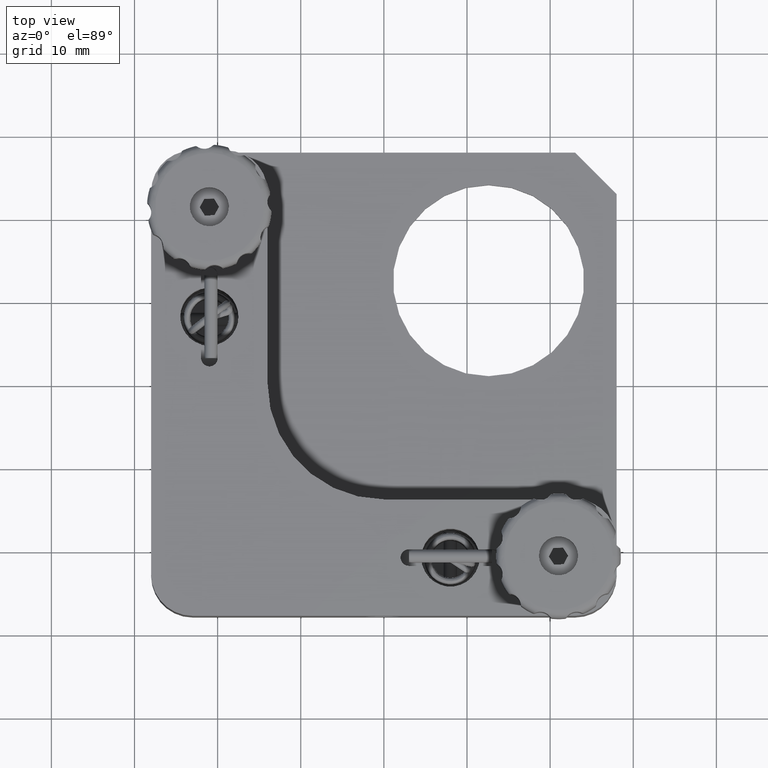
[diagram: clean part render]
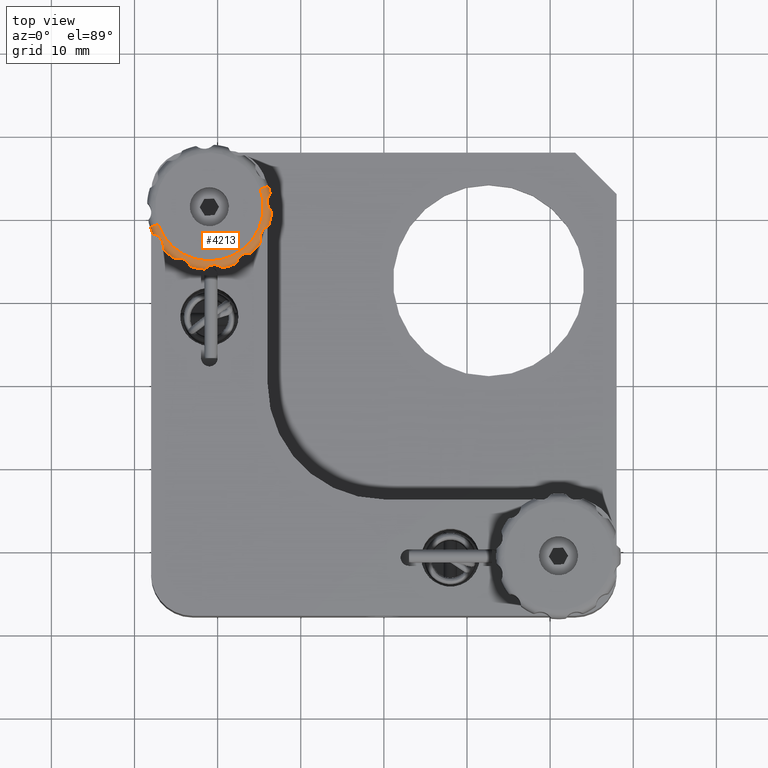
[diagram: same view with one face highlighted and labeled with its STEP entity id]
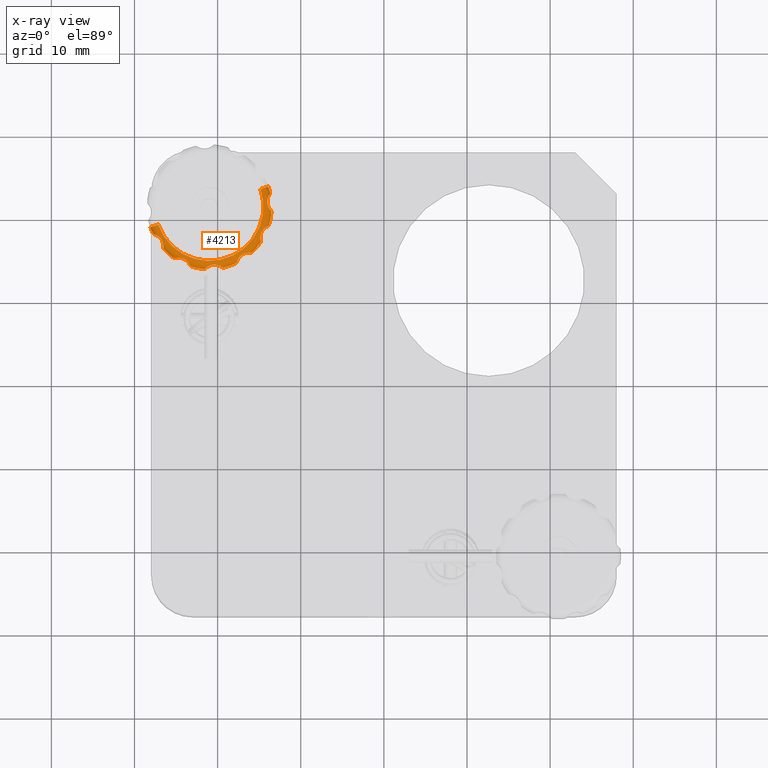
[diagram: x-ray of the same camera — body ghosted, the highlighted face saturated]
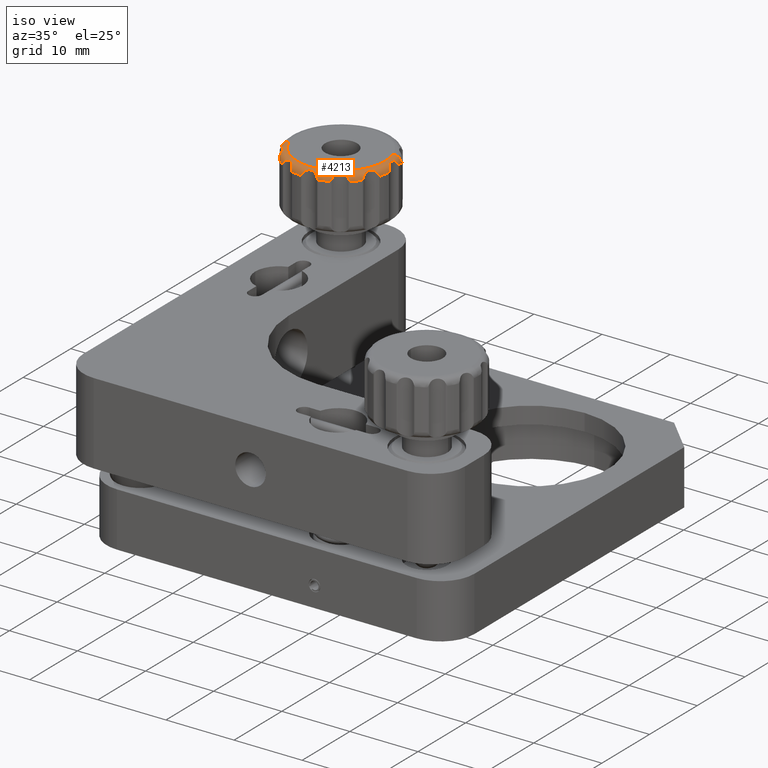
[diagram: same view with one face highlighted and labeled with its STEP entity id]
A machine part, top view. The second image highlights one B-rep face of the part: STEP entity #4213.
The next image is the same camera in x-ray: the body ghosted, the highlighted face saturated — about 0% of this face is hidden behind the body in this view.
A second angle (iso view) of the same face is appended — the face is thin or edge-on in the first view.
In plain terms, the highlighted toroidal blend (fillet) surface has major radius 6.5 mm and minor (blend) radius 1 mm.
Its self-contained STEP definition (entity closure, byte-faithful):
#28 = CARTESIAN_POINT ( 'NONE',  ( -23.48903131134175500, 14.22356563187358500, 18.06338198285874700 ) ) ;
#38 = ORIENTED_EDGE ( 'NONE', *, *, #5750, .F. ) ;
#46 = CARTESIAN_POINT ( 'NONE',  ( -13.61011395180894800, 20.57426432916911500, 17.79557772861557300 ) ) ;
#66 = CARTESIAN_POINT ( 'NONE',  ( -21.00000000000000400, 21.00000000000000000, 18.36413291343751900 ) ) ;
#79 = CARTESIAN_POINT ( 'NONE',  ( -27.61269688422106900, 17.67375488214117900, 17.79557772861557300 ) ) ;
#143 = EDGE_CURVE ( 'NONE', #1460, #1572, #1517, .T. ) ;
#260 = ORIENTED_EDGE ( 'NONE', *, *, #5016, .T. ) ;
#279 = ORIENTED_EDGE ( 'NONE', *, *, #6071, .T. ) ;
#292 = B_SPLINE_CURVE_WITH_KNOTS ( 'NONE', 3,
 ( #11022, #12832, #1448, #3114 ),
 .UNSPECIFIED., .F., .F.,
 ( 4, 4 ),
 ( -6.324575239418655400E-006, 0.0004951179910539897400 ),
 .UNSPECIFIED. ) ;
#552 = EDGE_LOOP ( 'NONE', ( #38, #15223, #18021, #12607, #3031, #10572, #5081, #3189, #1491, #279, #12377, #19966, #12120, #17394, #5804, #260, #20497, #8051, #7159, #8191, #16090, #9580, #2026, #1769, #3685, #3876, #11626, #18130, #9979, #13641, #11196 ) ) ;
#738 = VERTEX_POINT ( 'NONE', #2318 ) ;
#813 = EDGE_CURVE ( 'NONE', #7300, #1914, #5971, .T. ) ;
#929 = B_SPLINE_CURVE_WITH_KNOTS ( 'NONE', 3,
 ( #3179, #10948, #12689, #4715, #18969, #17508, #6296, #10804, #20569, #12615, #9348, #12471, #4631, #7917 ),
 .UNSPECIFIED., .F., .F.,
 ( 4, 2, 2, 2, 2, 2, 4 ),
 ( 0.0004549188434784859600, 0.0007454011220209126100, 0.001035883400563339300, 0.001616847957648192500, 0.002197812514733045600, 0.002488294793275477700, 0.002778777071817909800 ),
 .UNSPECIFIED. ) ;
#959 = CARTESIAN_POINT ( 'NONE',  ( -26.55618174068476400, 16.48617485560689000, 18.12254616349635900 ) ) ;
#977 = CARTESIAN_POINT ( 'NONE',  ( -14.85708256729319700, 17.29919896729693500, 18.10735583986565100 ) ) ;
#1042 = CARTESIAN_POINT ( 'NONE',  ( -14.81303878660980900, 16.93635906966770600, 17.79557772861557300 ) ) ;
#1106 = CARTESIAN_POINT ( 'NONE',  ( -16.09722986463491200, 15.45432495845159900, 17.79557772861358300 ) ) ;
#1122 = CARTESIAN_POINT ( 'NONE',  ( -14.79156492520353300, 16.84676273709813200, 17.65519952836487900 ) ) ;
#1169 = CARTESIAN_POINT ( 'NONE',  ( -17.83475846418796400, 14.20064370546960200, 17.36413291343759000 ) ) ;
#1296 = DIRECTION ( 'NONE',  ( -0.3270675224780835200, 0.9450009712905317300, 0.0000000000000000000 ) ) ;
#1328 = CARTESIAN_POINT ( 'NONE',  ( -13.68018086381186800, 22.63609942824139100, 17.50916980363153600 ) ) ;
#1378 = CARTESIAN_POINT ( 'NONE',  ( -17.69995613893085500, 14.29897348498459100, 17.65519952836487100 ) ) ;
#1448 = CARTESIAN_POINT ( 'NONE',  ( -25.15323726290181100, 14.79156492520347900, 17.65519952836487500 ) ) ;
#1457 = CARTESIAN_POINT ( 'NONE',  ( -13.74591946520322400, 22.47308596536765900, 17.79557772861358300 ) ) ;
#1460 = VERTEX_POINT ( 'NONE', #7022 ) ;
#1491 = ORIENTED_EDGE ( 'NONE', *, *, #11845, .T. ) ;
#1517 = CIRCLE ( 'NONE', #9548, 0.9999999999999997800 ) ;
#1572 = VERTEX_POINT ( 'NONE', #2906 ) ;
#1601 = CARTESIAN_POINT ( 'NONE',  ( -14.00380534571043600, 21.30498364322646800, 18.23006961303919100 ) ) ;
#1604 = CARTESIAN_POINT ( 'NONE',  ( -26.49394767617339100, 15.89429190683407700, 17.43824062363152500 ) ) ;
#1613 = DIRECTION ( 'NONE',  ( 0.0000000000000000000, 0.0000000000000000000, 1.000000000000000000 ) ) ;
#1648 = CARTESIAN_POINT ( 'NONE',  ( -24.70080103270301900, 14.85708256729315300, 18.10735583986563700 ) ) ;
#1721 = CARTESIAN_POINT ( 'NONE',  ( -23.35131039943161100, 13.98123899308393100, 17.79557772861359100 ) ) ;
#1752 = CARTESIAN_POINT ( 'NONE',  ( -23.24300590011968400, 13.84280096283287300, 17.50916980363158300 ) ) ;
#1769 = ORIENTED_EDGE ( 'NONE', *, *, #813, .T. ) ;
#1914 = VERTEX_POINT ( 'NONE', #7439 ) ;
#1930 = EDGE_CURVE ( 'NONE', #19973, #1914, #4187, .T. ) ;
#2026 = ORIENTED_EDGE ( 'NONE', *, *, #2438, .F. ) ;
#2031 = CARTESIAN_POINT ( 'NONE',  ( -13.52530530642423500, 20.38301081652115700, 17.43867576923494800 ) ) ;
#2318 = CARTESIAN_POINT ( 'NONE',  ( -17.67375488214125300, 14.38730311577890000, 17.79557772861556600 ) ) ;
#2418 = CIRCLE ( 'NONE', #14257, 7.499999999999988500 ) ;
#2437 = CARTESIAN_POINT ( 'NONE',  ( -14.61939108513888500, 18.11498814203533300, 18.23024657594939800 ) ) ;
#2438 = EDGE_CURVE ( 'NONE', #7300, #19353, #2418, .T. ) ;
#2478 = B_SPLINE_CURVE_WITH_KNOTS ( 'NONE', 3,
 ( #11362, #6526, #5141, #12983 ),
 .UNSPECIFIED., .F., .F.,
 ( 4, 4 ),
 ( -6.324575239417801600E-006, 0.0004951179910539887600 ),
 .UNSPECIFIED. ) ;
#2534 = VERTEX_POINT ( 'NONE', #7372 ) ;
#2631 = CARTESIAN_POINT ( 'NONE',  ( -16.73277401511606000, 15.38786701142045600, 18.20702261764653300 ) ) ;
#2655 = DIRECTION ( 'NONE',  ( -0.0000000000000000000, -0.0000000000000000000, -1.000000000000000000 ) ) ;
#2743 = CARTESIAN_POINT ( 'NONE',  ( -26.53045612293301800, 15.97141784788278000, 17.58722862377026200 ) ) ;
#2828 = EDGE_CURVE ( 'NONE', #18204, #1572, #15878, .T. ) ;
#2906 = CARTESIAN_POINT ( 'NONE',  ( -14.85749368661155500, 23.12593889610754200, 18.36413291343755500 ) ) ;
#2983 = CARTESIAN_POINT ( 'NONE',  ( -19.28497152289136500, 13.69872084339282400, 17.36413291343759000 ) ) ;
#3031 = ORIENTED_EDGE ( 'NONE', *, *, #5632, .F. ) ;
#3102 = CARTESIAN_POINT ( 'NONE',  ( -23.88501185796460300, 14.61939108513884600, 18.23024657594938700 ) ) ;
#3109 = B_SPLINE_CURVE_WITH_KNOTS ( 'NONE', 3,
 ( #18761, #18696, #15491, #2983 ),
 .UNSPECIFIED., .F., .F.,
 ( 4, 4 ),
 ( 6.504010182095674600E-016, 0.0004984791478706568200 ),
 .UNSPECIFIED. ) ;
#3114 = CARTESIAN_POINT ( 'NONE',  ( -25.06364093033223400, 14.81303878660976100, 17.79557772861557300 ) ) ;
#3179 = CARTESIAN_POINT ( 'NONE',  ( -19.52691403463226300, 13.74591946520324000, 17.79557772861359100 ) ) ;
#3189 = ORIENTED_EDGE ( 'NONE', *, *, #16782, .F. ) ;
#3224 = B_SPLINE_CURVE_WITH_KNOTS ( 'NONE', 3,
 ( #14332, #15857, #11313, #6326 ),
 .UNSPECIFIED., .F., .F.,
 ( 4, 4 ),
 ( 0.0002498727217914453500, 0.0004951179910539886500 ),
 .UNSPECIFIED. ) ;
#3242 = CARTESIAN_POINT ( 'NONE',  ( -23.40499108127105300, 14.09094652423045000, 17.94789520167757900 ) ) ;
#3260 = CARTESIAN_POINT ( 'NONE',  ( -13.82967693357407800, 20.86647100768087900, 18.10735583986564000 ) ) ;
#3269 = VERTEX_POINT ( 'NONE', #20471 ) ;
#3335 = CARTESIAN_POINT ( 'NONE',  ( -26.46557899118932900, 15.86410219230660700, 17.36413291343759000 ) ) ;
#3601 = CARTESIAN_POINT ( 'NONE',  ( -19.52691403463226300, 13.74591946520324000, 17.79557772861359100 ) ) ;
#3685 = ORIENTED_EDGE ( 'NONE', *, *, #1930, .F. ) ;
#3696 = CIRCLE ( 'NONE', #12136, 7.499999999999989300 ) ;
#3720 = CIRCLE ( 'NONE', #4955, 7.499999999999992000 ) ;
#3757 = CARTESIAN_POINT ( 'NONE',  ( -13.84280096283293900, 18.75699409988007500, 17.50916980363149000 ) ) ;
#3876 = ORIENTED_EDGE ( 'NONE', *, *, #9654, .T. ) ;
#3957 = CARTESIAN_POINT ( 'NONE',  ( -26.54385881936259000, 16.01014245449997700, 17.65772963204451100 ) ) ;
#4134 = TOROIDAL_SURFACE ( 'NONE', #8446, 6.500000000000000000, 1.000000000000000000 ) ;
#4187 = B_SPLINE_CURVE_WITH_KNOTS ( 'NONE', 3,
 ( #18499, #8822, #20169, #5633, #12067, #5901, #2437, #12215, #16829, #977, #5714, #7301, #18559, #1042 ),
 .UNSPECIFIED., .F., .F.,
 ( 4, 2, 2, 2, 2, 2, 4 ),
 ( 0.0004549188434784911100, 0.0007454011220209182500, 0.001035883400563345500, 0.001616847957648202700, 0.002197812514733059900, 0.002488294793275485500, 0.002778777071817911100 ),
 .UNSPECIFIED. ) ;
#4213 = ADVANCED_FACE ( 'NONE', ( #6866 ), #4134, .T. ) ;
#4221 = CARTESIAN_POINT ( 'NONE',  ( -16.91673651709914900, 15.31120198335268700, 18.23024657594938700 ) ) ;
#4255 = B_SPLINE_CURVE_WITH_KNOTS ( 'NONE', 3,
 ( #18692, #12052, #13684, #10745, #5761, #2631, #4221, #7566, #5824, #20293, #7490, #18544, #9015, #17014 ),
 .UNSPECIFIED., .F., .F.,
 ( 4, 2, 2, 2, 2, 2, 4 ),
 ( 0.0004549188434784829200, 0.0007454011220209113100, 0.001035883400563339900, 0.001616847957648195600, 0.002197812514733051700, 0.002488294793275481200, 0.002778777071817910600 ),
 .UNSPECIFIED. ) ;
#4454 = CARTESIAN_POINT ( 'NONE',  ( -27.61269688422106900, 17.67375488214117900, 17.79557772861557300 ) ) ;
#4571 = CARTESIAN_POINT ( 'NONE',  ( -17.67375488214125300, 14.38730311577890000, 17.79557772861556600 ) ) ;
#4631 = CARTESIAN_POINT ( 'NONE',  ( -21.38680145802431600, 13.64703279058534100, 17.87732855987515300 ) ) ;
#4632 = B_SPLINE_CURVE_WITH_KNOTS ( 'NONE', 3,
 ( #1457, #10960, #15984, #6176, #4865, #17518, #4644, #1601, #15775, #3260, #12700, #9440, #6454, #17446 ),
 .UNSPECIFIED., .F., .F.,
 ( 4, 2, 2, 2, 2, 2, 4 ),
 ( 0.0004549188434784848200, 0.0007454011220209132600, 0.001035883400563341900, 0.001616847957648200400, 0.002197812514733059100, 0.002488294793275485900, 0.002778777071817912400 ),
 .UNSPECIFIED. ) ;
#4644 = CARTESIAN_POINT ( 'NONE',  ( -14.03172465913447400, 21.69181089821382700, 18.23024657594939100 ) ) ;
#4715 = CARTESIAN_POINT ( 'NONE',  ( -19.76734716237364300, 13.88692003445369500, 18.06338198285874700 ) ) ;
#4756 = CARTESIAN_POINT ( 'NONE',  ( -26.95417805822332700, 17.27906465646374200, 18.21944670762512800 ) ) ;
#4827 = CARTESIAN_POINT ( 'NONE',  ( -26.72195945880259100, 16.96476861247536000, 18.22986778431251800 ) ) ;
#4865 = CARTESIAN_POINT ( 'NONE',  ( -13.92187970082235200, 22.15211706196609500, 18.10763337496180700 ) ) ;
#4931 = VERTEX_POINT ( 'NONE', #3601 ) ;
#4955 = AXIS2_PLACEMENT_3D ( 'NONE', #9872, #13274, #6882 ) ;
#5016 = EDGE_CURVE ( 'NONE', #3269, #7790, #14394, .T. ) ;
#5081 = ORIENTED_EDGE ( 'NONE', *, *, #17490, .F. ) ;
#5141 = CARTESIAN_POINT ( 'NONE',  ( -27.70102651501538600, 17.69995613893078700, 17.65519952836487900 ) ) ;
#5202 = CARTESIAN_POINT ( 'NONE',  ( -23.35131039943161100, 13.98123899308393100, 17.79557772861359100 ) ) ;
#5402 = VERTEX_POINT ( 'NONE', #19023 ) ;
#5412 = CARTESIAN_POINT ( 'NONE',  ( -21.57725425912122600, 13.52180306247503000, 17.51003203627313800 ) ) ;
#5556 = DIRECTION ( 'NONE',  ( 0.3270675224780834100, -0.9450009712905317300, 0.0000000000000000000 ) ) ;
#5562 = CARTESIAN_POINT ( 'NONE',  ( -21.00000000000000400, 21.00000000000000000, 17.36413291343759000 ) ) ;
#5632 = EDGE_CURVE ( 'NONE', #11616, #13824, #18792, .T. ) ;
#5633 = CARTESIAN_POINT ( 'NONE',  ( -14.22356563187361400, 18.51096868865817100, 18.06338198285875400 ) ) ;
#5656 = DIRECTION ( 'NONE',  ( -0.9450009712905227400, -0.3270675224781096600, 0.0000000000000000000 ) ) ;
#5714 = CARTESIAN_POINT ( 'NONE',  ( -14.85454432092487700, 17.21136642430083400, 18.06302291672524900 ) ) ;
#5750 = EDGE_CURVE ( 'NONE', #1460, #14719, #14302, .T. ) ;
#5761 = CARTESIAN_POINT ( 'NONE',  ( -16.46317720661506100, 15.44622654085288000, 18.10763337496181100 ) ) ;
#5801 = CARTESIAN_POINT ( 'NONE',  ( -17.83475846418796400, 14.20064370546960200, 17.36413291343759000 ) ) ;
#5804 = ORIENTED_EDGE ( 'NONE', *, *, #13886, .F. ) ;
#5824 = CARTESIAN_POINT ( 'NONE',  ( -17.37691322196045000, 14.95124884212489900, 18.20656811965874100 ) ) ;
#5901 = CARTESIAN_POINT ( 'NONE',  ( -14.49840739911166300, 18.27336325491540900, 18.20702261764653300 ) ) ;
#5971 = B_SPLINE_CURVE_WITH_KNOTS ( 'NONE', 3,
 ( #5986, #8976, #1122, #13928 ),
 .UNSPECIFIED., .F., .F.,
 ( 4, 4 ),
 ( -6.324575239417459400E-006, 0.0004951179910539906100 ),
 .UNSPECIFIED. ) ;
#5986 = CARTESIAN_POINT ( 'NONE',  ( -14.85914227360790600, 16.69420548746107600, 17.36413291343759000 ) ) ;
#6019 = EDGE_CURVE ( 'NONE', #14403, #14719, #11512, .T. ) ;
#6071 = EDGE_CURVE ( 'NONE', #18350, #15197, #7839, .T. ) ;
#6129 = B_SPLINE_CURVE_WITH_KNOTS ( 'NONE', 3,
 ( #14747, #18143, #3957, #18422 ),
 .UNSPECIFIED., .F., .F.,
 ( 4, 4 ),
 ( 6.479697253256279800E-016, 0.0002437774083432564900 ),
 .UNSPECIFIED. ) ;
#6176 = CARTESIAN_POINT ( 'NONE',  ( -13.88692003445368800, 22.23265283762628600, 18.06338198285874700 ) ) ;
#6296 = CARTESIAN_POINT ( 'NONE',  ( -20.30818910178610500, 14.03172465913448300, 18.23024657594939100 ) ) ;
#6326 = CARTESIAN_POINT ( 'NONE',  ( -13.61011395180894800, 20.57426432916911500, 17.79557772861557300 ) ) ;
#6328 = AXIS2_PLACEMENT_3D ( 'NONE', #8966, #10693, #12217 ) ;
#6337 = CARTESIAN_POINT ( 'NONE',  ( -27.45046920178176500, 17.61990015231514000, 17.99428431909605700 ) ) ;
#6383 = AXIS2_PLACEMENT_3D ( 'NONE', #66, #1613, #13000 ) ;
#6447 = CARTESIAN_POINT ( 'NONE',  ( -13.54430510219998900, 20.46596163134247700, 17.58722862377014100 ) ) ;
#6454 = CARTESIAN_POINT ( 'NONE',  ( -13.64703279058534900, 20.61319854197562800, 17.87732855987514900 ) ) ;
#6526 = CARTESIAN_POINT ( 'NONE',  ( -27.76493565196118100, 17.76081838408129700, 17.51003203627438500 ) ) ;
#6693 = EDGE_CURVE ( 'NONE', #18962, #20621, #3224, .T. ) ;
#6702 = EDGE_CURVE ( 'NONE', #20085, #10021, #14315, .T. ) ;
#6752 = CARTESIAN_POINT ( 'NONE',  ( -13.53030387555325300, 20.42550768263520700, 17.51357922040975300 ) ) ;
#6866 = FACE_OUTER_BOUND ( 'NONE', #552, .T. ) ;
#6882 = DIRECTION ( 'NONE',  ( -0.9450009712905305100, -0.3270675224780869600, 0.0000000000000000000 ) ) ;
#6922 = EDGE_CURVE ( 'NONE', #9666, #17809, #18603, .T. ) ;
#6948 = CARTESIAN_POINT ( 'NONE',  ( -13.81939253170207500, 18.83461865108615300, 17.36413291343759000 ) ) ;
#6991 = CARTESIAN_POINT ( 'NONE',  ( -26.46557899118932900, 15.86410219230660700, 17.36413291343759000 ) ) ;
#7022 = CARTESIAN_POINT ( 'NONE',  ( -13.91249271532102400, 23.45300641858562300, 17.36413291343759000 ) ) ;
#7065 = CARTESIAN_POINT ( 'NONE',  ( -13.74591946520322400, 22.47308596536765900, 17.79557772861358300 ) ) ;
#7159 = ORIENTED_EDGE ( 'NONE', *, *, #9335, .F. ) ;
#7217 = CARTESIAN_POINT ( 'NONE',  ( -26.54567504154835300, 16.09722986463485100, 17.79557772861359100 ) ) ;
#7300 = VERTEX_POINT ( 'NONE', #18305 ) ;
#7301 = CARTESIAN_POINT ( 'NONE',  ( -14.83858831266802100, 17.05534924833062900, 17.94748716496582800 ) ) ;
#7372 = CARTESIAN_POINT ( 'NONE',  ( -25.06364093033223400, 14.81303878660976100, 17.79557772861557300 ) ) ;
#7439 = CARTESIAN_POINT ( 'NONE',  ( -14.81303878660980900, 16.93635906966770600, 17.79557772861557300 ) ) ;
#7445 = DIRECTION ( 'NONE',  ( -0.9450009712905322900, -0.3270675224780820200, 0.0000000000000000000 ) ) ;
#7490 = CARTESIAN_POINT ( 'NONE',  ( -17.57219605193918000, 14.64621923827626800, 18.06302291672524500 ) ) ;
#7566 = CARTESIAN_POINT ( 'NONE',  ( -17.23777909008239800, 15.09360952117756200, 18.23006961303919100 ) ) ;
#7679 = VERTEX_POINT ( 'NONE', #14338 ) ;
#7710 = CARTESIAN_POINT ( 'NONE',  ( -17.76081838407892400, 14.23506434803993800, 17.51003203627287500 ) ) ;
#7790 = VERTEX_POINT ( 'NONE', #12942 ) ;
#7839 = B_SPLINE_CURVE_WITH_KNOTS ( 'NONE', 3,
 ( #9649, #17523, #1604, #3335 ),
 .UNSPECIFIED., .F., .F.,
 ( 4, 4 ),
 ( 0.0002437774083432564900, 0.0004984791478706602900 ),
 .UNSPECIFIED. ) ;
#7917 = CARTESIAN_POINT ( 'NONE',  ( -21.42573567083081400, 13.61011395180894500, 17.79557772861556600 ) ) ;
#7953 = CARTESIAN_POINT ( 'NONE',  ( -23.35131039943161100, 13.98123899308393100, 17.79557772861359100 ) ) ;
#7997 = EDGE_CURVE ( 'NONE', #9666, #18962, #13759, .T. ) ;
#8051 = ORIENTED_EDGE ( 'NONE', *, *, #10581, .T. ) ;
#8056 = CARTESIAN_POINT ( 'NONE',  ( -24.42682877487053300, 14.83793923116464700, 18.20656811965874100 ) ) ;
#8189 = DIRECTION ( 'NONE',  ( -0.9450009712905325100, -0.3270675224780809600, 0.0000000000000000000 ) ) ;
#8191 = ORIENTED_EDGE ( 'NONE', *, *, #12132, .T. ) ;
#8227 = B_SPLINE_CURVE_WITH_KNOTS ( 'NONE', 3,
 ( #1721, #14367, #3242, #28, #20644, #17429, #3102, #9554, #8056, #1648, #12758, #9344, #19169, #9623 ),
 .UNSPECIFIED., .F., .F.,
 ( 4, 2, 2, 2, 2, 2, 4 ),
 ( 0.0004549188434784865600, 0.0007454011220209141300, 0.001035883400563341600, 0.001616847957648190400, 0.002197812514733038700, 0.002488294793275469900, 0.002778777071817900700 ),
 .UNSPECIFIED. ) ;
#8240 = CARTESIAN_POINT ( 'NONE',  ( -26.66336508087193000, 16.84647227897331900, 18.21831703938164900 ) ) ;
#8446 = AXIS2_PLACEMENT_3D ( 'NONE', #10563, #20250, #16977 ) ;
#8455 = DIRECTION ( 'NONE',  ( -0.0000000000000000000, -0.0000000000000000000, -1.000000000000000000 ) ) ;
#8470 = CARTESIAN_POINT ( 'NONE',  ( -15.92318676393203900, 15.47890039107398300, 17.50916980363128400 ) ) ;
#8567 = EDGE_CURVE ( 'NONE', #20341, #19353, #18369, .T. ) ;
#8668 = CARTESIAN_POINT ( 'NONE',  ( -16.00548248510253300, 15.44581982610143300, 17.65518886728128200 ) ) ;
#8822 = CARTESIAN_POINT ( 'NONE',  ( -14.02963240328553100, 18.62642730774704000, 17.87673945030594100 ) ) ;
#8966 = CARTESIAN_POINT ( 'NONE',  ( -21.00000000000000400, 21.00000000000000000, 17.36413291343759000 ) ) ;
#8976 = CARTESIAN_POINT ( 'NONE',  ( -14.81231860716159000, 16.76098467839494400, 17.51003203627366000 ) ) ;
#9015 = CARTESIAN_POINT ( 'NONE',  ( -17.65849628416267000, 14.43874287444074000, 17.87732855987515600 ) ) ;
#9029 = CARTESIAN_POINT ( 'NONE',  ( -28.08750728467898500, 18.54699358141438000, 17.36413291343759000 ) ) ;
#9197 = CARTESIAN_POINT ( 'NONE',  ( -27.14250631338845600, 18.87406110389246200, 17.36413291343759000 ) ) ;
#9300 = CARTESIAN_POINT ( 'NONE',  ( -13.74591946520322400, 22.47308596536765900, 17.79557772861358300 ) ) ;
#9335 = EDGE_CURVE ( 'NONE', #12978, #15370, #3696, .T. ) ;
#9344 = CARTESIAN_POINT ( 'NONE',  ( -24.94465075166931500, 14.83858831266798000, 17.94748716496582500 ) ) ;
#9348 = CARTESIAN_POINT ( 'NONE',  ( -21.20832508264851400, 13.78356247623999800, 18.06302291672524500 ) ) ;
#9440 = CARTESIAN_POINT ( 'NONE',  ( -13.69173557976148100, 20.66453808366294700, 17.94748716496582800 ) ) ;
#9465 = DIRECTION ( 'NONE',  ( -0.0000000000000000000, -0.0000000000000000000, -1.000000000000000000 ) ) ;
#9548 = AXIS2_PLACEMENT_3D ( 'NONE', #15343, #5556, #19870 ) ;
#9554 = CARTESIAN_POINT ( 'NONE',  ( -24.23397374437189500, 14.78862587795108900, 18.23006961303919100 ) ) ;
#9580 = ORIENTED_EDGE ( 'NONE', *, *, #8567, .T. ) ;
#9598 = CARTESIAN_POINT ( 'NONE',  ( -27.14461134372410100, 17.44632663156290100, 18.16756702489346900 ) ) ;
#9623 = CARTESIAN_POINT ( 'NONE',  ( -25.06364093033223400, 14.81303878660976100, 17.79557772861557300 ) ) ;
#9649 = CARTESIAN_POINT ( 'NONE',  ( -26.53045612293301800, 15.97141784788278000, 17.58722862377026200 ) ) ;
#9654 = EDGE_CURVE ( 'NONE', #19973, #17809, #19903, .T. ) ;
#9666 = VERTEX_POINT ( 'NONE', #10014 ) ;
#9872 = CARTESIAN_POINT ( 'NONE',  ( -21.00000000000000400, 21.00000000000000000, 17.36413291343759000 ) ) ;
#9946 = EDGE_CURVE ( 'NONE', #14403, #20621, #4632, .T. ) ;
#9979 = ORIENTED_EDGE ( 'NONE', *, *, #6693, .T. ) ;
#10014 = CARTESIAN_POINT ( 'NONE',  ( -13.52896395164902700, 20.34150143186171500, 17.36413291343759000 ) ) ;
#10016 = EDGE_CURVE ( 'NONE', #11616, #19895, #2478, .T. ) ;
#10021 = VERTEX_POINT ( 'NONE', #16193 ) ;
#10077 = CARTESIAN_POINT ( 'NONE',  ( -13.89753086550318400, 18.68719762965672600, 17.65518886728128900 ) ) ;
#10112 = CARTESIAN_POINT ( 'NONE',  ( -16.09722986463491200, 15.45432495845159900, 17.79557772861358300 ) ) ;
#10120 = CARTESIAN_POINT ( 'NONE',  ( -21.65849856813821000, 13.52896395164901500, 17.36413291343759000 ) ) ;
#10183 = CARTESIAN_POINT ( 'NONE',  ( -26.62176963464483100, 16.72628994846233800, 18.19141214553010500 ) ) ;
#10251 = CARTESIAN_POINT ( 'NONE',  ( -21.49259144021884900, 13.54671887602897400, 17.65519952836487100 ) ) ;
#10285 = VERTEX_POINT ( 'NONE', #10183 ) ;
#10333 = DIRECTION ( 'NONE',  ( -0.0000000000000000000, -0.0000000000000000000, -1.000000000000000000 ) ) ;
#10563 = CARTESIAN_POINT ( 'NONE',  ( -21.00000000000000400, 21.00000000000000000, 17.36413291343759000 ) ) ;
#10572 = ORIENTED_EDGE ( 'NONE', *, *, #10016, .T. ) ;
#10581 = EDGE_CURVE ( 'NONE', #4931, #15370, #3109, .T. ) ;
#10693 = DIRECTION ( 'NONE',  ( -0.0000000000000000000, -0.0000000000000000000, -1.000000000000000000 ) ) ;
#10713 = B_SPLINE_CURVE_WITH_KNOTS ( 'NONE', 3,
 ( #1169, #7710, #1378, #4571 ),
 .UNSPECIFIED., .F., .F.,
 ( 4, 4 ),
 ( -6.324575239411680100E-006, 0.0004951179910539871400 ),
 .UNSPECIFIED. ) ;
#10741 = B_SPLINE_CURVE_WITH_KNOTS ( 'NONE', 3,
 ( #19345, #8240, #4827, #14419, #4756, #9598, #15871, #6337, #17690, #79 ),
 .UNSPECIFIED., .F., .F.,
 ( 4, 2, 2, 2, 4 ),
 ( 0.001221977629040593400, 0.001611177489734922400, 0.002000377350429251400, 0.002389577211123580400, 0.002778777071817909300 ),
 .UNSPECIFIED. ) ;
#10745 = CARTESIAN_POINT ( 'NONE',  ( -16.37595134579552100, 15.45621846949987900, 18.06338198285874300 ) ) ;
#10804 = CARTESIAN_POINT ( 'NONE',  ( -20.69501635677348600, 14.00380534571043600, 18.23006961303918400 ) ) ;
#10895 = CARTESIAN_POINT ( 'NONE',  ( -13.69872084339281500, 22.71502847710856400, 17.36413291343759000 ) ) ;
#10948 = CARTESIAN_POINT ( 'NONE',  ( -19.57039045086277400, 13.77669824140290800, 17.87673945030594400 ) ) ;
#10960 = CARTESIAN_POINT ( 'NONE',  ( -13.77669824140289600, 22.42960954913715800, 17.87673945030594100 ) ) ;
#11022 = CARTESIAN_POINT ( 'NONE',  ( -25.30579451253887100, 14.85914227360785100, 17.36413291343759000 ) ) ;
#11034 = CARTESIAN_POINT ( 'NONE',  ( -13.69268011475924100, 22.54828896059827100, 17.65518886728128200 ) ) ;
#11150 = CARTESIAN_POINT ( 'NONE',  ( -13.69872084339281500, 22.71502847710856400, 17.36413291343759000 ) ) ;
#11196 = ORIENTED_EDGE ( 'NONE', *, *, #6019, .T. ) ;
#11313 = CARTESIAN_POINT ( 'NONE',  ( -13.57910872115112400, 20.54156654428315700, 17.72692163152044000 ) ) ;
#11362 = CARTESIAN_POINT ( 'NONE',  ( -27.79935629453037600, 17.83475846418788900, 17.36413291343759000 ) ) ;
#11425 = EDGE_CURVE ( 'NONE', #13824, #18204, #16355, .T. ) ;
#11512 = B_SPLINE_CURVE_WITH_KNOTS ( 'NONE', 3,
 ( #9300, #11034, #1328, #10895 ),
 .UNSPECIFIED., .F., .F.,
 ( 4, 4 ),
 ( 6.471146383914886800E-016, 0.0004984791478706521600 ),
 .UNSPECIFIED. ) ;
#11616 = VERTEX_POINT ( 'NONE', #14064 ) ;
#11626 = ORIENTED_EDGE ( 'NONE', *, *, #6922, .F. ) ;
#11726 = CARTESIAN_POINT ( 'NONE',  ( -13.52896395164902700, 20.34150143186171500, 17.36413291343759000 ) ) ;
#11845 = EDGE_CURVE ( 'NONE', #7679, #18350, #6129, .T. ) ;
#12052 = CARTESIAN_POINT ( 'NONE',  ( -16.15027093365586500, 15.45924195242266600, 17.87673945030593700 ) ) ;
#12067 = CARTESIAN_POINT ( 'NONE',  ( -14.29410947888680300, 18.45870249420729100, 18.10763337496181100 ) ) ;
#12104 = CARTESIAN_POINT ( 'NONE',  ( -15.86410219230666900, 15.53442100881062300, 17.36413291343759000 ) ) ;
#12120 = ORIENTED_EDGE ( 'NONE', *, *, #15870, .F. ) ;
#12132 = EDGE_CURVE ( 'NONE', #12978, #738, #10713, .T. ) ;
#12136 = AXIS2_PLACEMENT_3D ( 'NONE', #15866, #9465, #19069 ) ;
#12215 = CARTESIAN_POINT ( 'NONE',  ( -14.78862587795113000, 17.76602625562804900, 18.23006961303918400 ) ) ;
#12217 = DIRECTION ( 'NONE',  ( -0.9450009712905401700, -0.3270675224780591500, 0.0000000000000000000 ) ) ;
#12267 = CARTESIAN_POINT ( 'NONE',  ( -26.58078021546704100, 16.60785862075924900, 18.16489924394964100 ) ) ;
#12291 = CARTESIAN_POINT ( 'NONE',  ( -21.00000000000000400, 21.00000000000000000, 17.36413291343759000 ) ) ;
#12377 = ORIENTED_EDGE ( 'NONE', *, *, #17583, .F. ) ;
#12471 = CARTESIAN_POINT ( 'NONE',  ( -21.33546191633699600, 13.69173557976147200, 17.94748716496582800 ) ) ;
#12607 = ORIENTED_EDGE ( 'NONE', *, *, #11425, .F. ) ;
#12615 = CARTESIAN_POINT ( 'NONE',  ( -21.13352899231906800, 13.82967693357407800, 18.10735583986564000 ) ) ;
#12689 = CARTESIAN_POINT ( 'NONE',  ( -19.62825663437096000, 13.81408863324286800, 17.94789520167757900 ) ) ;
#12700 = CARTESIAN_POINT ( 'NONE',  ( -13.78356247624000600, 20.79167491735142200, 18.06302291672524500 ) ) ;
#12758 = CARTESIAN_POINT ( 'NONE',  ( -24.78863357569911600, 14.85454432092483000, 18.06302291672524900 ) ) ;
#12832 = CARTESIAN_POINT ( 'NONE',  ( -25.23901532160576600, 14.81231860716207500, 17.51003203627418300 ) ) ;
#12933 = CARTESIAN_POINT ( 'NONE',  ( -23.31280237034320600, 13.89753086550315200, 17.65518886728128600 ) ) ;
#12942 = CARTESIAN_POINT ( 'NONE',  ( -21.42573567083081400, 13.61011395180894500, 17.79557772861556600 ) ) ;
#12978 = VERTEX_POINT ( 'NONE', #5801 ) ;
#12983 = CARTESIAN_POINT ( 'NONE',  ( -27.61269688422106900, 17.67375488214117900, 17.79557772861557300 ) ) ;
#13000 = DIRECTION ( 'NONE',  ( -0.9450009712905317300, -0.3270675224780834100, 0.0000000000000000000 ) ) ;
#13181 = CARTESIAN_POINT ( 'NONE',  ( -15.86410219230666900, 15.53442100881062300, 17.36413291343759000 ) ) ;
#13274 = DIRECTION ( 'NONE',  ( -0.0000000000000000000, -0.0000000000000000000, -1.000000000000000000 ) ) ;
#13641 = ORIENTED_EDGE ( 'NONE', *, *, #9946, .F. ) ;
#13684 = CARTESIAN_POINT ( 'NONE',  ( -16.21907971451398500, 15.46268988985943300, 17.94789520167758200 ) ) ;
#13724 = DIRECTION ( 'NONE',  ( -0.0000000000000000000, -0.0000000000000000000, -1.000000000000000000 ) ) ;
#13759 = B_SPLINE_CURVE_WITH_KNOTS ( 'NONE', 3,
 ( #11726, #2031, #6752, #19479 ),
 .UNSPECIFIED., .F., .F.,
 ( 4, 4 ),
 ( -6.324575239417853300E-006, 0.0002498727217914453500 ),
 .UNSPECIFIED. ) ;
#13789 = AXIS2_PLACEMENT_3D ( 'NONE', #5562, #10333, #15015 ) ;
#13824 = VERTEX_POINT ( 'NONE', #9029 ) ;
#13886 = EDGE_CURVE ( 'NONE', #3269, #10021, #19443, .T. ) ;
#13928 = CARTESIAN_POINT ( 'NONE',  ( -14.81303878660980900, 16.93635906966770600, 17.79557772861557300 ) ) ;
#14064 = CARTESIAN_POINT ( 'NONE',  ( -27.79935629453037600, 17.83475846418788900, 17.36413291343759000 ) ) ;
#14257 = AXIS2_PLACEMENT_3D ( 'NONE', #12291, #2655, #7445 ) ;
#14302 = CIRCLE ( 'NONE', #15379, 7.499999999999991100 ) ;
#14315 = B_SPLINE_CURVE_WITH_KNOTS ( 'NONE', 3,
 ( #7953, #12933, #1752, #19138 ),
 .UNSPECIFIED., .F., .F.,
 ( 4, 4 ),
 ( 6.471890386260931700E-016, 0.0004984791478706627900 ),
 .UNSPECIFIED. ) ;
#14316 = AXIS2_PLACEMENT_3D ( 'NONE', #17979, #8455, #8189 ) ;
#14332 = CARTESIAN_POINT ( 'NONE',  ( -13.54430510219998900, 20.46596163134247700, 17.58722862377014100 ) ) ;
#14338 = CARTESIAN_POINT ( 'NONE',  ( -26.54567504154835300, 16.09722986463485100, 17.79557772861359100 ) ) ;
#14367 = CARTESIAN_POINT ( 'NONE',  ( -23.37357269225289300, 14.02963240328549200, 17.87673945030593700 ) ) ;
#14394 = B_SPLINE_CURVE_WITH_KNOTS ( 'NONE', 3,
 ( #10120, #5412, #10251, #19725 ),
 .UNSPECIFIED., .F., .F.,
 ( 4, 4 ),
 ( -6.324575239416180400E-006, 0.0004951179910539862700 ),
 .UNSPECIFIED. ) ;
#14403 = VERTEX_POINT ( 'NONE', #7065 ) ;
#14419 = CARTESIAN_POINT ( 'NONE',  ( -26.86687628285773100, 17.18033564669886800, 18.23043852067371500 ) ) ;
#14719 = VERTEX_POINT ( 'NONE', #11150 ) ;
#14747 = CARTESIAN_POINT ( 'NONE',  ( -26.54567504154835300, 16.09722986463485100, 17.79557772861359100 ) ) ;
#15015 = DIRECTION ( 'NONE',  ( -0.9450009712905325100, -0.3270675224780809600, 0.0000000000000000000 ) ) ;
#15197 = VERTEX_POINT ( 'NONE', #6991 ) ;
#15223 = ORIENTED_EDGE ( 'NONE', *, *, #143, .T. ) ;
#15231 = CARTESIAN_POINT ( 'NONE',  ( -13.81939253170207500, 18.83461865108615300, 17.36413291343759000 ) ) ;
#15343 = CARTESIAN_POINT ( 'NONE',  ( -14.85749368661155500, 23.12593889610754200, 17.36413291343759000 ) ) ;
#15370 = VERTEX_POINT ( 'NONE', #17875 ) ;
#15379 = AXIS2_PLACEMENT_3D ( 'NONE', #18584, #13724, #5656 ) ;
#15474 = DIRECTION ( 'NONE',  ( -0.9450009712905322900, -0.3270675224780820200, 0.0000000000000000000 ) ) ;
#15491 = CARTESIAN_POINT ( 'NONE',  ( -19.36390057175855300, 13.68018086381187200, 17.50916980363152600 ) ) ;
#15550 = CARTESIAN_POINT ( 'NONE',  ( -26.53918303893293600, 16.16726101798486300, 17.90273712571665500 ) ) ;
#15775 = CARTESIAN_POINT ( 'NONE',  ( -13.95008444708985700, 21.11330961096023600, 18.20656811965874400 ) ) ;
#15783 = AXIS2_PLACEMENT_3D ( 'NONE', #9197, #1296, #15474 ) ;
#15857 = CARTESIAN_POINT ( 'NONE',  ( -13.55770779863227600, 20.50468623795917400, 17.65772963204510800 ) ) ;
#15866 = CARTESIAN_POINT ( 'NONE',  ( -21.00000000000000400, 21.00000000000000000, 17.36413291343759000 ) ) ;
#15870 = EDGE_CURVE ( 'NONE', #20085, #2534, #8227, .T. ) ;
#15871 = CARTESIAN_POINT ( 'NONE',  ( -27.25003677959830700, 17.51625038076714700, 18.12545344777830900 ) ) ;
#15878 = CIRCLE ( 'NONE', #6383, 6.499999999999992900 ) ;
#15984 = CARTESIAN_POINT ( 'NONE',  ( -13.81408863324285900, 22.37174336562897300, 17.94789520167757500 ) ) ;
#15994 = B_SPLINE_CURVE_WITH_KNOTS ( 'NONE', 3,
 ( #7217, #15550, #18486, #959, #12267, #20081 ),
 .UNSPECIFIED., .F., .F.,
 ( 4, 2, 4 ),
 ( 0.0004549188434784897600, 0.0008384482362595415500, 0.001221977629040593400 ),
 .UNSPECIFIED. ) ;
#16090 = ORIENTED_EDGE ( 'NONE', *, *, #16803, .F. ) ;
#16193 = CARTESIAN_POINT ( 'NONE',  ( -23.16538134891376900, 13.81939253170205400, 17.36413291343759000 ) ) ;
#16355 = CIRCLE ( 'NONE', #15783, 0.9999999999999997800 ) ;
#16782 = EDGE_CURVE ( 'NONE', #7679, #10285, #15994, .T. ) ;
#16803 = EDGE_CURVE ( 'NONE', #20341, #738, #4255, .T. ) ;
#16829 = CARTESIAN_POINT ( 'NONE',  ( -14.83793923116468200, 17.57317122512941100, 18.20656811965874100 ) ) ;
#16850 = EDGE_CURVE ( 'NONE', #4931, #7790, #929, .T. ) ;
#16977 = DIRECTION ( 'NONE',  ( -0.9450009712905317300, -0.3270675224780833500, 0.0000000000000000000 ) ) ;
#17014 = CARTESIAN_POINT ( 'NONE',  ( -17.67375488214125300, 14.38730311577890000, 17.79557772861556600 ) ) ;
#17394 = ORIENTED_EDGE ( 'NONE', *, *, #6702, .T. ) ;
#17429 = CARTESIAN_POINT ( 'NONE',  ( -23.72663674508452700, 14.49840739911162900, 18.20702261764653000 ) ) ;
#17446 = CARTESIAN_POINT ( 'NONE',  ( -13.61011395180894800, 20.57426432916911500, 17.79557772861557300 ) ) ;
#17490 = EDGE_CURVE ( 'NONE', #10285, #19895, #10741, .T. ) ;
#17508 = CARTESIAN_POINT ( 'NONE',  ( -20.11054038769112000, 14.00613727003146500, 18.20702261764653000 ) ) ;
#17518 = CARTESIAN_POINT ( 'NONE',  ( -14.00613727003146300, 21.88945961230881900, 18.20702261764653300 ) ) ;
#17523 = CARTESIAN_POINT ( 'NONE',  ( -26.51645281508801200, 15.93095788592494700, 17.51356827284556100 ) ) ;
#17583 = EDGE_CURVE ( 'NONE', #5402, #15197, #3720, .T. ) ;
#17690 = CARTESIAN_POINT ( 'NONE',  ( -27.54377582299214200, 17.65331079778097800, 17.90511078618288500 ) ) ;
#17809 = VERTEX_POINT ( 'NONE', #15231 ) ;
#17875 = CARTESIAN_POINT ( 'NONE',  ( -19.28497152289136500, 13.69872084339282400, 17.36413291343759000 ) ) ;
#17957 = CARTESIAN_POINT ( 'NONE',  ( -13.98123899308396300, 18.64868960056832100, 17.79557772861359100 ) ) ;
#17979 = CARTESIAN_POINT ( 'NONE',  ( -21.00000000000000400, 21.00000000000000000, 17.36413291343759000 ) ) ;
#18021 = ORIENTED_EDGE ( 'NONE', *, *, #2828, .F. ) ;
#18130 = ORIENTED_EDGE ( 'NONE', *, *, #7997, .T. ) ;
#18143 = CARTESIAN_POINT ( 'NONE',  ( -26.54983441136505500, 16.05236151156558200, 17.72692163151906500 ) ) ;
#18204 = VERTEX_POINT ( 'NONE', #18521 ) ;
#18305 = CARTESIAN_POINT ( 'NONE',  ( -14.85914227360790600, 16.69420548746107600, 17.36413291343759000 ) ) ;
#18350 = VERTEX_POINT ( 'NONE', #2743 ) ;
#18369 = B_SPLINE_CURVE_WITH_KNOTS ( 'NONE', 3,
 ( #10112, #8668, #8470, #13181 ),
 .UNSPECIFIED., .F., .F.,
 ( 4, 4 ),
 ( 6.510946660428678500E-016, 0.0004984791478706540000 ),
 .UNSPECIFIED. ) ;
#18422 = CARTESIAN_POINT ( 'NONE',  ( -26.53045612293301800, 15.97141784788278000, 17.58722862377026200 ) ) ;
#18486 = CARTESIAN_POINT ( 'NONE',  ( -26.53547019574111900, 16.26535717035931900, 17.99203855872667300 ) ) ;
#18499 = CARTESIAN_POINT ( 'NONE',  ( -13.98123899308396300, 18.64868960056832100, 17.79557772861359100 ) ) ;
#18521 = CARTESIAN_POINT ( 'NONE',  ( -27.14250631338845600, 18.87406110389246200, 18.36413291343755500 ) ) ;
#18544 = CARTESIAN_POINT ( 'NONE',  ( -17.63638633143085600, 14.50312639633094700, 17.94748716496582100 ) ) ;
#18559 = CARTESIAN_POINT ( 'NONE',  ( -14.82554433246514100, 16.98853650642269700, 17.87732855987515300 ) ) ;
#18584 = CARTESIAN_POINT ( 'NONE',  ( -21.00000000000000400, 21.00000000000000000, 17.36413291343759000 ) ) ;
#18603 = CIRCLE ( 'NONE', #13789, 7.499999999999990200 ) ;
#18692 = CARTESIAN_POINT ( 'NONE',  ( -16.09722986463491200, 15.45432495845159900, 17.79557772861358300 ) ) ;
#18696 = CARTESIAN_POINT ( 'NONE',  ( -19.45171103940164800, 13.69268011475925700, 17.65518886728128900 ) ) ;
#18761 = CARTESIAN_POINT ( 'NONE',  ( -19.52691403463226300, 13.74591946520324000, 17.79557772861359100 ) ) ;
#18792 = CIRCLE ( 'NONE', #14316, 7.499999999999990200 ) ;
#18922 = EDGE_CURVE ( 'NONE', #5402, #2534, #292, .T. ) ;
#18962 = VERTEX_POINT ( 'NONE', #6447 ) ;
#18969 = CARTESIAN_POINT ( 'NONE',  ( -19.84788293803384100, 13.92187970082236600, 18.10763337496181100 ) ) ;
#19023 = CARTESIAN_POINT ( 'NONE',  ( -25.30579451253887100, 14.85914227360785100, 17.36413291343759000 ) ) ;
#19069 = DIRECTION ( 'NONE',  ( -0.9450009712905317300, -0.3270675224780833500, 0.0000000000000000000 ) ) ;
#19138 = CARTESIAN_POINT ( 'NONE',  ( -23.16538134891376900, 13.81939253170205400, 17.36413291343759000 ) ) ;
#19169 = CARTESIAN_POINT ( 'NONE',  ( -25.01146349357724900, 14.82554433246508700, 17.87732855987514600 ) ) ;
#19174 = CARTESIAN_POINT ( 'NONE',  ( -13.98123899308396300, 18.64868960056832100, 17.79557772861359100 ) ) ;
#19345 = CARTESIAN_POINT ( 'NONE',  ( -26.62176963464483100, 16.72628994846233800, 18.19141214553010500 ) ) ;
#19353 = VERTEX_POINT ( 'NONE', #12104 ) ;
#19443 = CIRCLE ( 'NONE', #6328, 7.499999999999992900 ) ;
#19479 = CARTESIAN_POINT ( 'NONE',  ( -13.54430510219998900, 20.46596163134247700, 17.58722862377014100 ) ) ;
#19725 = CARTESIAN_POINT ( 'NONE',  ( -21.42573567083081400, 13.61011395180894500, 17.79557772861556600 ) ) ;
#19870 = DIRECTION ( 'NONE',  ( 0.9450009712905322900, 0.3270675224780820200, 0.0000000000000000000 ) ) ;
#19895 = VERTEX_POINT ( 'NONE', #4454 ) ;
#19903 = B_SPLINE_CURVE_WITH_KNOTS ( 'NONE', 3,
 ( #17957, #10077, #3757, #6948 ),
 .UNSPECIFIED., .F., .F.,
 ( 4, 4 ),
 ( 6.465028371043900400E-016, 0.0004984791478706574700 ),
 .UNSPECIFIED. ) ;
#19966 = ORIENTED_EDGE ( 'NONE', *, *, #18922, .T. ) ;
#19973 = VERTEX_POINT ( 'NONE', #19174 ) ;
#20081 = CARTESIAN_POINT ( 'NONE',  ( -26.62176963464483100, 16.72628994846233800, 18.19141214553010500 ) ) ;
#20085 = VERTEX_POINT ( 'NONE', #5202 ) ;
#20169 = CARTESIAN_POINT ( 'NONE',  ( -14.09094652423047700, 18.59500891872888000, 17.94789520167757900 ) ) ;
#20250 = DIRECTION ( 'NONE',  ( 0.0000000000000000000, 0.0000000000000000000, 1.000000000000000000 ) ) ;
#20293 = CARTESIAN_POINT ( 'NONE',  ( -17.53047796627716100, 14.72355357497404200, 18.10735583986564000 ) ) ;
#20341 = VERTEX_POINT ( 'NONE', #1106 ) ;
#20471 = CARTESIAN_POINT ( 'NONE',  ( -21.65849856813821000, 13.52896395164901500, 17.36413291343759000 ) ) ;
#20497 = ORIENTED_EDGE ( 'NONE', *, *, #16850, .F. ) ;
#20569 = CARTESIAN_POINT ( 'NONE',  ( -20.88669038903970300, 13.95008444708985400, 18.20656811965874100 ) ) ;
#20621 = VERTEX_POINT ( 'NONE', #46 ) ;
#20644 = CARTESIAN_POINT ( 'NONE',  ( -23.54129750579264900, 14.29410947888677400, 18.10763337496181400 ) ) ;